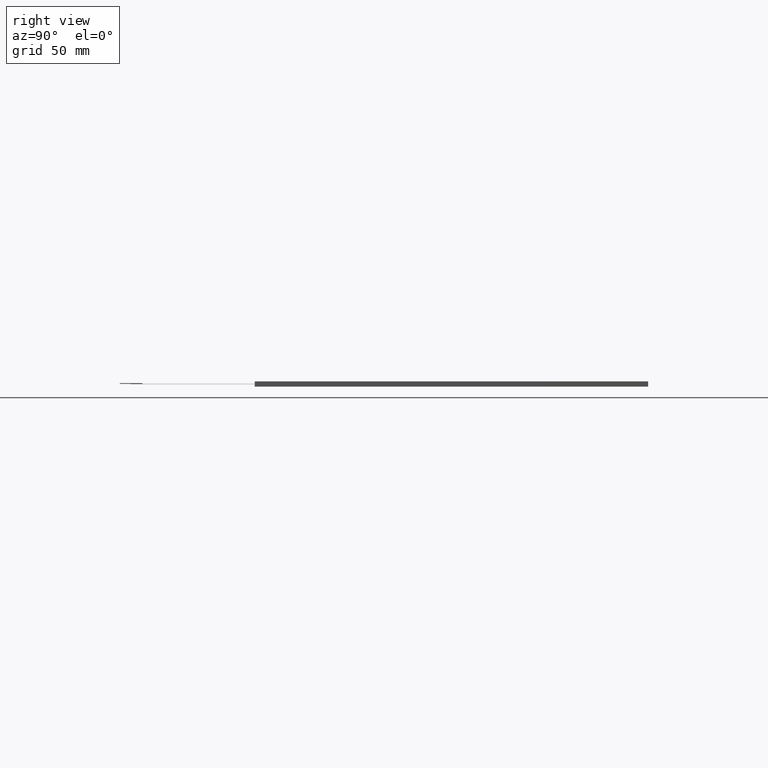
[diagram: clean part render]
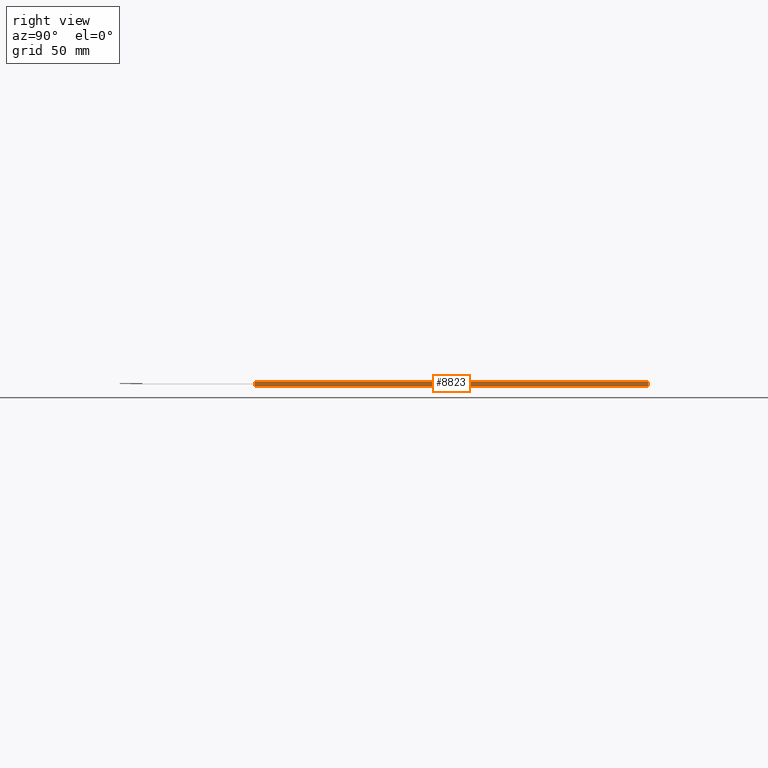
[diagram: same view with one face highlighted and labeled with its STEP entity id]
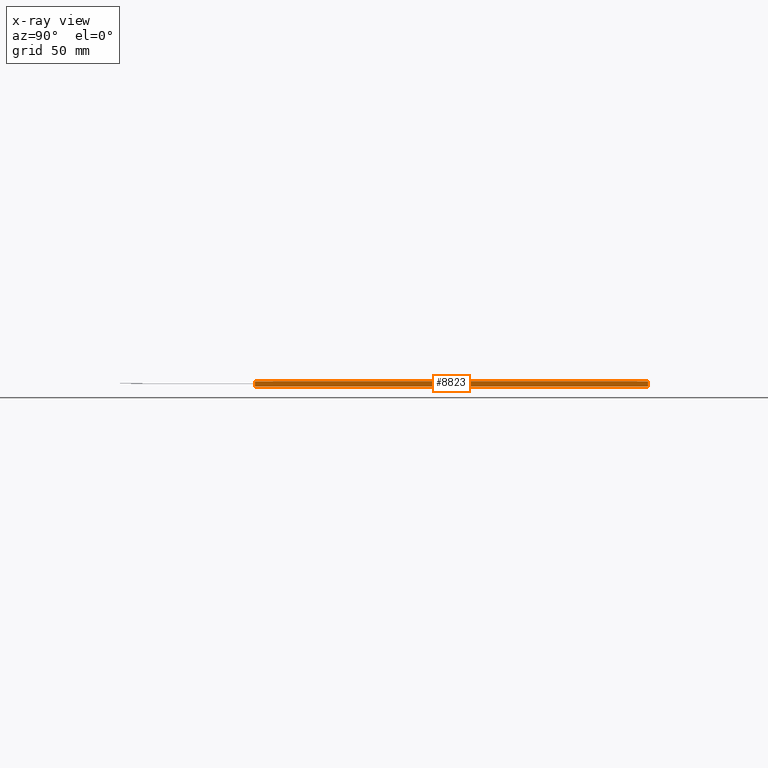
[diagram: x-ray of the same camera — body ghosted, the highlighted face saturated]
A machine part, right view. The second image highlights one B-rep face of the part: STEP entity #8823.
The next image is the same camera in x-ray: the body ghosted, the highlighted face saturated — about 0% of this face is hidden behind the body in this view.
In plain terms, the highlighted planar face has unit normal (1, 0, 0).
Its self-contained STEP definition (entity closure, byte-faithful):
#487=PLANE('',#9277);
#909=FACE_OUTER_BOUND('',#1335,.T.);
#1335=EDGE_LOOP('',(#8383,#8384,#8385,#8386));
#2566=LINE('',#13871,#3802);
#2571=LINE('',#13881,#3807);
#2572=LINE('',#13884,#3808);
#2573=LINE('',#13885,#3809);
#3802=VECTOR('',#11366,10.);
#3807=VECTOR('',#11375,10.);
#3808=VECTOR('',#11378,10.);
#3809=VECTOR('',#11379,10.);
#4647=VERTEX_POINT('',#13864);
#4650=VERTEX_POINT('',#13869);
#4653=VERTEX_POINT('',#13879);
#4654=VERTEX_POINT('',#13883);
#5894=EDGE_CURVE('',#4650,#4647,#2566,.T.);
#5899=EDGE_CURVE('',#4650,#4653,#2571,.T.);
#5900=EDGE_CURVE('',#4654,#4653,#2572,.T.);
#5901=EDGE_CURVE('',#4647,#4654,#2573,.T.);
#8383=ORIENTED_EDGE('',*,*,#5894,.F.);
#8384=ORIENTED_EDGE('',*,*,#5899,.T.);
#8385=ORIENTED_EDGE('',*,*,#5900,.F.);
#8386=ORIENTED_EDGE('',*,*,#5901,.F.);
#8823=ADVANCED_FACE('',(#909),#487,.T.);
#9277=AXIS2_PLACEMENT_3D('',#13882,#11376,#11377);
#11366=DIRECTION('',(0.,1.,0.));
#11375=DIRECTION('',(0.,0.,-1.));
#11376=DIRECTION('center_axis',(1.,0.,0.));
#11377=DIRECTION('ref_axis',(0.,-1.,0.));
#11378=DIRECTION('',(0.,-1.,0.));
#11379=DIRECTION('',(0.,0.,-1.));
#13864=CARTESIAN_POINT('',(111.9,85.9000000000001,0.));
#13869=CARTESIAN_POINT('',(111.9,-89.0999999999999,0.));
#13871=CARTESIAN_POINT('',(111.9,-89.0999999999999,0.));
#13879=CARTESIAN_POINT('',(111.9,-89.0999999999999,-2.35));
#13881=CARTESIAN_POINT('',(111.9,-89.0999999999999,0.));
#13882=CARTESIAN_POINT('Origin',(111.9,85.9000000000001,0.));
#13883=CARTESIAN_POINT('',(111.9,85.9000000000001,-2.35));
#13884=CARTESIAN_POINT('',(111.9,-89.0999999999999,-2.35));
#13885=CARTESIAN_POINT('',(111.9,85.9000000000001,0.));